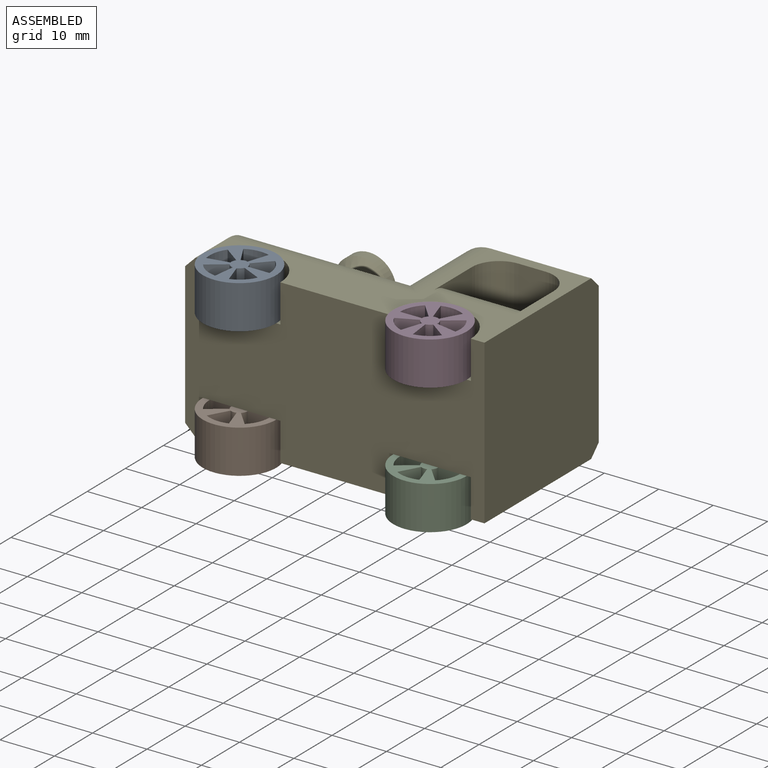
[diagram: assembled view]
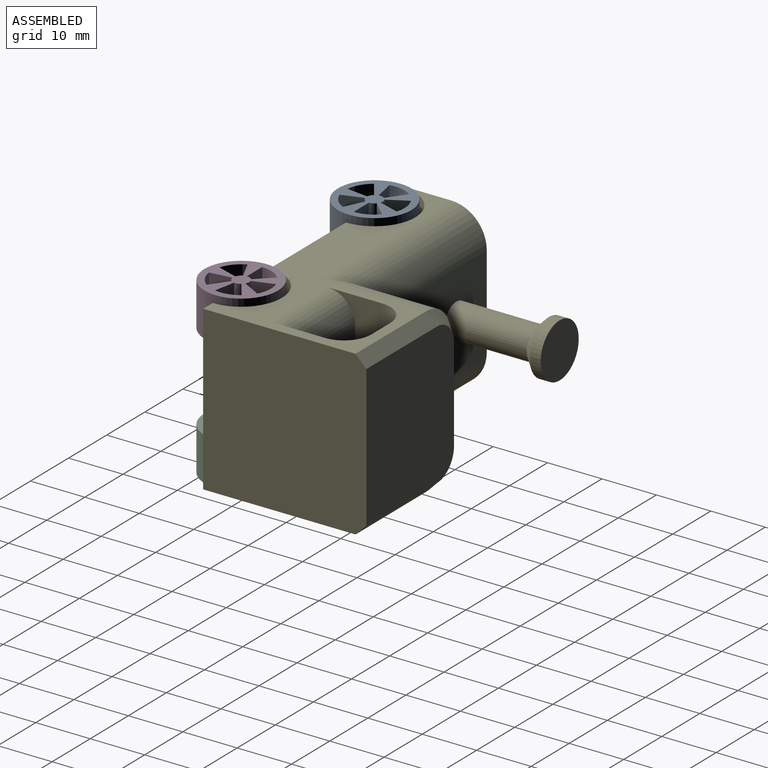
[diagram: assembled view, second angle]
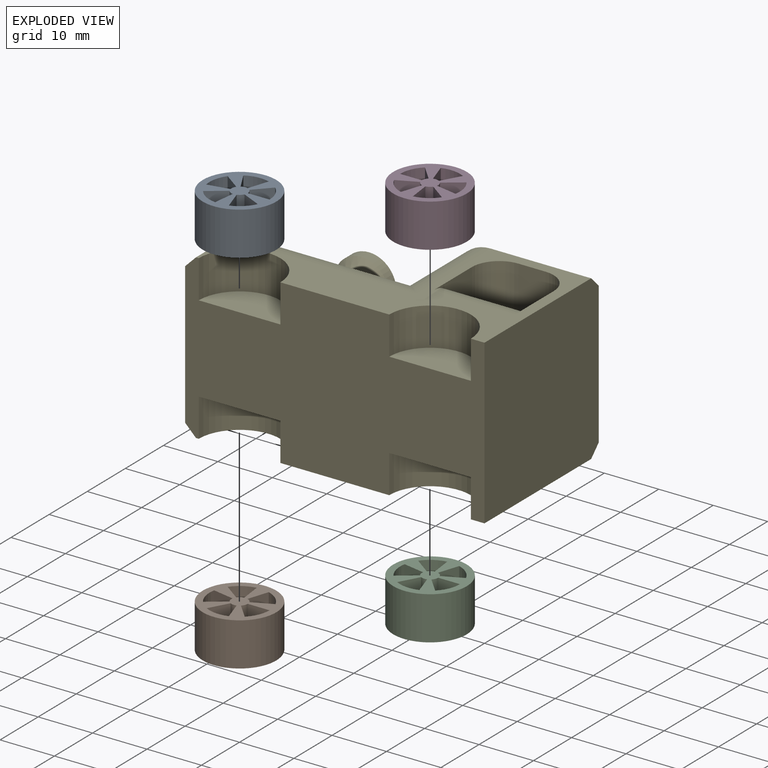
[diagram: exploded view]
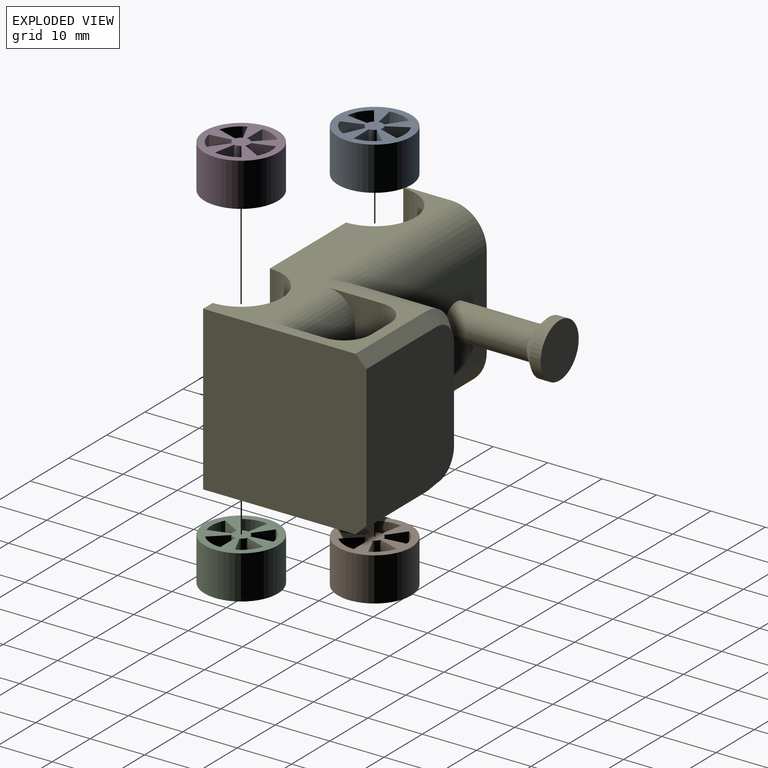
[diagram: exploded view, second angle]
ASSEMBLY  parts=5 mates=4
PART A: 23 faces, bbox 8x13.5x13.5 mm
  f0: plane 13.5x13.5mm, normal (1,0,0), area 85.7mm2, adj f2,f3,f4,f5,f6,f7,f8,f9
  f1: plane 13.5x13.5mm, normal (-1,0,0), area 85.7mm2, adj f2,f3,f4,f5,f6,f7,f8,f9
  f2: cylinder r=6.75mm len=13.5mm, axis (-1,0,0), area 339.3mm2, adj f0,f1
  f3: cylinder r=1.5mm len=8mm, axis (1,0,0), area 9.8mm2, adj f0,f1,f4,f6
  f4: plane 8x4mm, normal (0,-1,0), area 32mm2, adj f0,f1,f3,f5
  f5: cylinder r=5.5mm len=8mm, axis (1,0,0), area 36.1mm2, adj f0,f1,f4,f6
  f6: plane 8x2.93mm, normal (0,0.68,0.73), area 32mm2, adj f0,f1,f3,f5
  f7: cylinder r=1.5mm len=8mm, axis (1,0,0), area 9.8mm2, adj f0,f1,f8,f10
  f8: plane 8x3.24mm, normal (0,0.81,-0.59), area 32mm2, adj f0,f1,f7,f9
  f9: cylinder r=5.5mm len=8mm, axis (1,0,0), area 36.1mm2, adj f0,f1,f8,f10
  f10: plane 8x3.93mm, normal (0,-0.98,-0.19), area 32mm2, adj f0,f1,f7,f9
  f11: cylinder r=1.5mm len=8mm, axis (1,0,0), area 9.8mm2, adj f0,f1,f12,f14
  f12: plane 8x3.8mm, normal (0,-0.31,-0.95), area 32mm2, adj f0,f1,f11,f13
  f13: cylinder r=5.5mm len=8mm, axis (1,0,0), area 36.1mm2, adj f0,f1,f12,f14
  f14: plane 8x3.5mm, normal (0,-0.48,0.87), area 32mm2, adj f0,f1,f11,f13
  f15: plane 8x3.24mm, normal (0,0.81,0.59), area 32mm2, adj f0,f1,f16,f18
  f16: cylinder r=5.5mm len=8mm, axis (1,0,0), area 36.1mm2, adj f0,f1,f15,f17
  f17: plane 8x3.97mm, normal (0,-0.12,-0.99), area 32mm2, adj f0,f1,f16,f18
  f18: cylinder r=1.5mm len=8mm, axis (1,0,0), area 9.8mm2, adj f0,f1,f15,f17
  f19: plane 8x3.63mm, normal (0,0.91,-0.42), area 32mm2, adj f0,f1,f20,f22
  f20: cylinder r=1.5mm len=8mm, axis (1,0,0), area 9.8mm2, adj f0,f1,f19,f21
  f21: plane 8x3.8mm, normal (0,-0.31,0.95), area 32mm2, adj f0,f1,f20,f22
  f22: cylinder r=5.5mm len=8mm, axis (1,0,0), area 36.1mm2, adj f0,f1,f19,f21
PART B: same geometry as A
PART C: same geometry as A
PART D: same geometry as A
PART E: 46 faces, bbox 56x34x30 mm
  f0: plane 53x28mm, normal (0,0,-1), area 420.3mm2, adj f2,f4,f12,f14,f16,f17,f20,f21
  f1: plane 53x28mm, normal (0,0,1), area 420.3mm2, adj f2,f4,f8,f10,f18,f19,f20,f21
  f2: plane 55x30mm, normal (0,-1,0), area 1226mm2, adj f0,f1,f3,f4,f8,f9,f10,f11
  f3: plane 26x13mm, normal (-1,0,0), area 272.8mm2, adj f2,f28,f30,f36,f37,f38,f39,f40
  f4: plane 30x30mm, normal (1,0,0), area 896mm2, adj f0,f1,f2,f5,f41,f45
  f5: plane 26x23mm, normal (0,1,0), area 589.3mm2, adj f4,f41,f42,f43,f44,f45
  f6: plane 28x17mm, normal (0,1,0), area 447.7mm2, adj f7,f17,f18,f32,f38
  f7: plane 17x13mm, normal (-1,0,0), area 221mm2, adj f6,f16,f19,f43
  f8: cylinder r=7.5mm len=15mm, axis (0,0,1), area 164.9mm2, adj f1,f2,f9
  f9: plane 15x7.5mm, normal (0,0,1), area 88.4mm2, adj f2,f8
  f10: cylinder r=7.5mm len=15mm, axis (0,0,1), area 164.9mm2, adj f1,f2,f11
  f11: plane 15x7.5mm, normal (0,0,1), area 88.4mm2, adj f2,f10
  f12: cylinder r=7.5mm len=15mm, axis (0,0,-1), area 164.9mm2, adj f0,f2,f13
  f13: plane 15x7.5mm, normal (0,0,-1), area 88.4mm2, adj f2,f12
  f14: cylinder r=7.5mm len=15mm, axis (0,0,-1), area 164.9mm2, adj f0,f2,f15
  f15: plane 15x7.5mm, normal (0,0,-1), area 88.4mm2, adj f2,f14
  f16: cylinder r=6.5mm len=19.5mm, axis (0,1,0), area 156.8mm2, adj f0,f7,f17,f44
  f17: cylinder r=6.5mm len=34.5mm, axis (1,0,0), area 310mm2, adj f0,f6,f16,f39
  f18: cylinder r=6.5mm len=34.5mm, axis (-1,0,0), area 310mm2, adj f1,f6,f19,f37
  f19: cylinder r=6.5mm len=19.5mm, axis (0,-1,0), area 156.8mm2, adj f1,f7,f18,f42
  f20: plane 30x5mm, normal (0,-1,0), area 150mm2, adj f0,f1,f24,f25
  f21: plane 30x10mm, normal (1,0,0), area 160.7mm2, adj f0,f1,f22,f24,f26,f27
  f22: plane 20x15mm, normal (0,1,0), area 300mm2, adj f21,f23,f26,f27
  f23: plane 30x10mm, normal (-1,0,0), area 160.7mm2, adj f0,f1,f22,f25,f26,f27
  f24: cylinder r=5mm len=30mm, axis (0,0,1), area 235.6mm2, adj f0,f1,f20,f21
  f25: cylinder r=5mm len=30mm, axis (0,0,-1), area 235.6mm2, adj f0,f1,f20,f23
  f26: cylinder r=5mm len=15mm, axis (1,0,0), area 117.8mm2, adj f0,f21,f22,f23
  f27: cylinder r=5mm len=15mm, axis (-1,0,0), area 117.8mm2, adj f1,f21,f22,f23
  f28: cylinder r=3mm len=6mm, axis (1,0,0), area 18.8mm2, adj f3,f29
  f29: plane 6x6mm, normal (-1,0,0), area 28.3mm2, adj f28
  f30: cylinder r=3mm len=6mm, axis (1,0,0), area 18.8mm2, adj f3,f31
  f31: plane 6x6mm, normal (-1,0,0), area 28.3mm2, adj f30
  f32: cylinder r=3mm len=15mm, axis (0,-1,0), area 282.7mm2, adj f6,f35
  f33: cylinder r=5mm len=10mm, axis (0,-1,0), area 62.8mm2, adj f34,f35
  f34: plane 10x10mm, normal (0,1,0), area 78.5mm2, adj f33
  f35: cone r=5mm half-angle=45deg, axis (0,1,0), area 71.1mm2, adj f32,f33
  f36: plane 8.5x2mm, normal (-0.71,0,0.71), area 24mm2, adj f1,f2,f3,f37
  f37: cone r=4.5mm half-angle=45deg, axis (1,0,0), area 24.4mm2, adj f3,f18,f36,f38
  f38: plane 17x2mm, normal (-0.71,0.71,0), area 48.1mm2, adj f3,f6,f37,f39
  f39: cone r=4.5mm half-angle=45deg, axis (1,0,0), area 24.4mm2, adj f3,f17,f38,f40
  f40: plane 8.5x2mm, normal (-0.71,0,-0.71), area 24mm2, adj f0,f2,f3,f39
  f41: plane 18.5x2mm, normal (0,0.71,0.71), area 52.3mm2, adj f1,f4,f5,f42
  f42: cone r=4.5mm half-angle=45deg, axis (0,-1,0), area 24.4mm2, adj f5,f19,f41,f43
  f43: plane 17x2mm, normal (-0.71,0.71,0), area 48.1mm2, adj f5,f7,f42,f44
  f44: cone r=4.5mm half-angle=45deg, axis (0,-1,0), area 24.4mm2, adj f5,f16,f43,f45
  f45: plane 18.5x2mm, normal (0,0.71,-0.71), area 52.3mm2, adj f0,f4,f5,f44
PLACE A rot(axis=(0.71,0,0.71),180deg) t=(-17.5,-15,-7)mm
PLACE B rot(axis=(0,1,0),90deg) t=(-17.5,-15,-23)mm
PLACE C rot(axis=(0,1,0),90deg) t=(17.5,-15,-23)mm
PLACE D rot(axis=(0.71,0,-0.71),180deg) t=(17.5,-15,1)mm
PLACE E at identity
MATE fastened C.f13 <-> E.f8  axis (0,0,1) through (17.5,-15,-23)mm
MATE fastened B.f22 <-> E.f10  axis (0,0,1) through (-17.5,-15,-23)mm
MATE fastened D.f22 <-> E.f8  axis (0,0,-1) through (17.5,-15,-7)mm
MATE fastened A.f22 <-> E.f10  axis (0,0,-1) through (-17.5,-15,-7)mm
